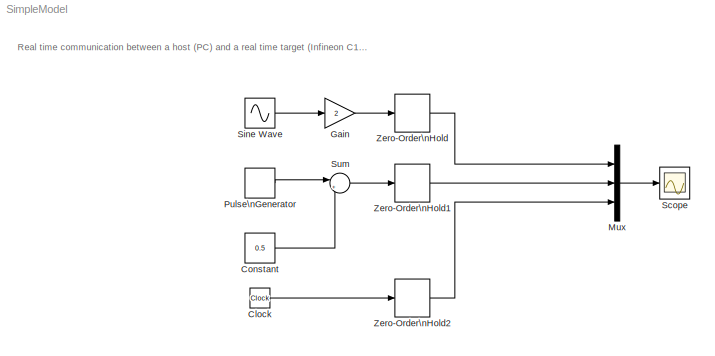
MODEL SimpleModel
KIND model
BLOCK [Clock] Clock
  SID = 1
BLOCK [Constant] Constant
  SID = 2
  Value = 0.5
BLOCK [Gain] Gain
  Gain = 2
  SID = 3
BLOCK [Mux] Mux
  DisplayOption = bar
  Inputs = 3
  Ports = [3, 1]
  SID = 4
BLOCK [DiscretePulseGenerator] Pulse\nGenerator
  Period = 1
  Ports = [0, 1]
  PulseType = Time based
  PulseWidth = 50
  SID = 5
BLOCK [Scope] Scope
  Floating = off
  NumInputPorts = 1
  Ports = [1]
  SID = 6
  ScopeSpecificationString = C++SS(StrPVP('Location','[46, 190, 370, 429]'),StrPVP('Open','off'),MxPVP('AxesTitles',54,'struct(''axes1'',''%<SignalLabel>'')'),StrPVP('TimeRange','10'),StrPVP('DataFormat','StructureWithTime'),StrPVP('LimitDataPoints','on'),StrPVP('Decimation','1'),StrPVP('BlockParamSampleInput','off'))
BLOCK [Sin] Sine Wave
  Frequency = 2*pi*1
  Ports = [0, 1]
  SID = 7
  SampleTime = 0.005
BLOCK [Sum] Sum
  IconShape = round
  Inputs = |+-
  Ports = [2, 1]
  SID = 8
BLOCK [ZeroOrderHold] Zero-Order\nHold
  SID = 9
  SampleTime = 0.05
BLOCK [ZeroOrderHold] Zero-Order\nHold1
  SID = 10
  SampleTime = 0.05
BLOCK [ZeroOrderHold] Zero-Order\nHold2
  SID = 11
  SampleTime = 0.05
ANNOTATION (root): Real time communication between a host (PC) and a real time target (Infineon C167CR)
LINE Clock:1 -> Zero-Order\nHold2:1
LINE Constant:1 -> Sum:2
LINE Gain:1 -> Zero-Order\nHold:1
LINE Mux:1 -> Scope:1
LINE Pulse\nGenerator:1 -> Sum:1
LINE Sine Wave:1 -> Gain:1
LINE Sum:1 -> Zero-Order\nHold1:1
LINE Zero-Order\nHold1:1 -> Mux:2
LINE Zero-Order\nHold2:1 -> Mux:3
LINE Zero-Order\nHold:1 -> Mux:1
